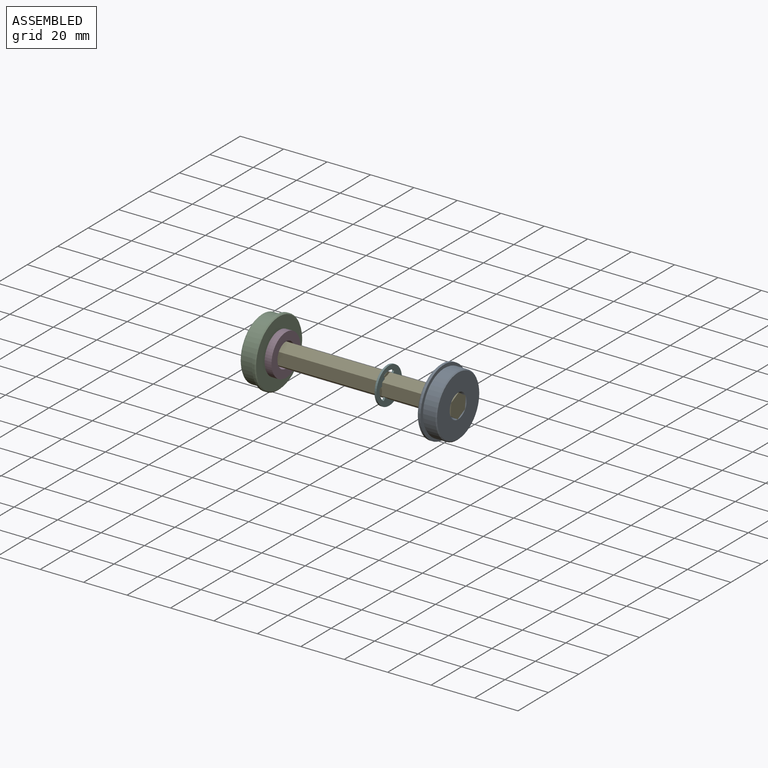
[diagram: assembled view]
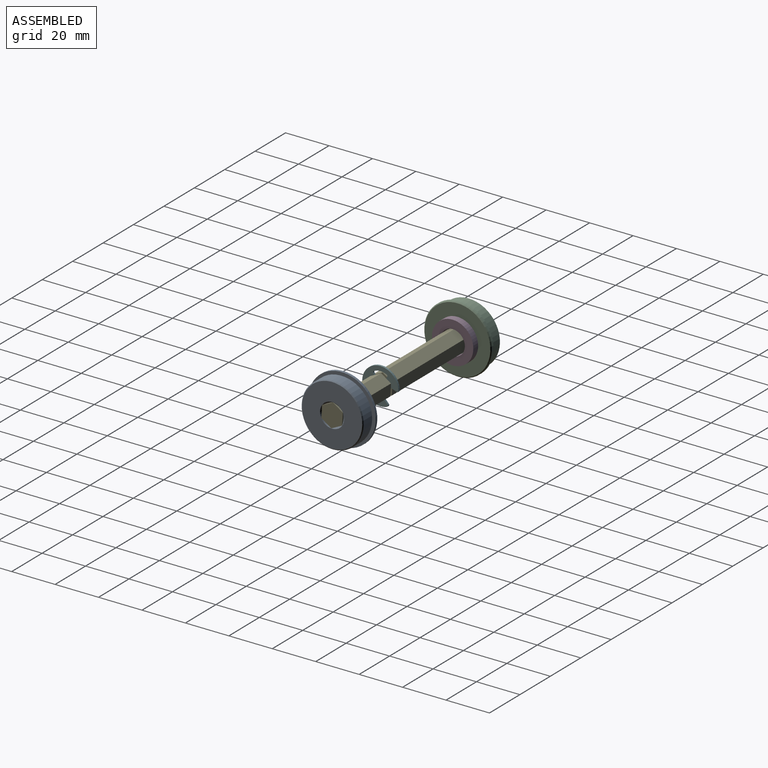
[diagram: assembled view, second angle]
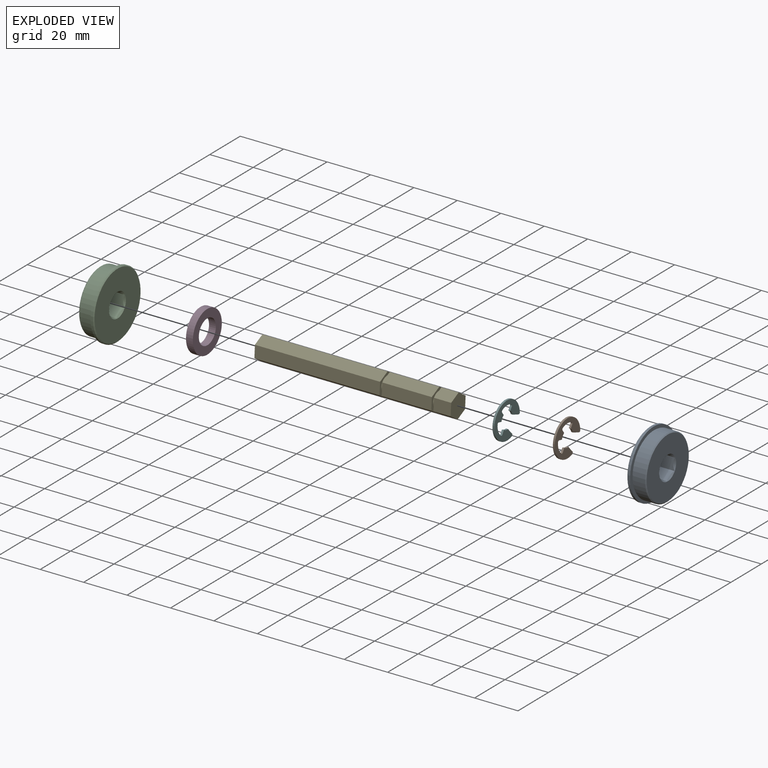
[diagram: exploded view]
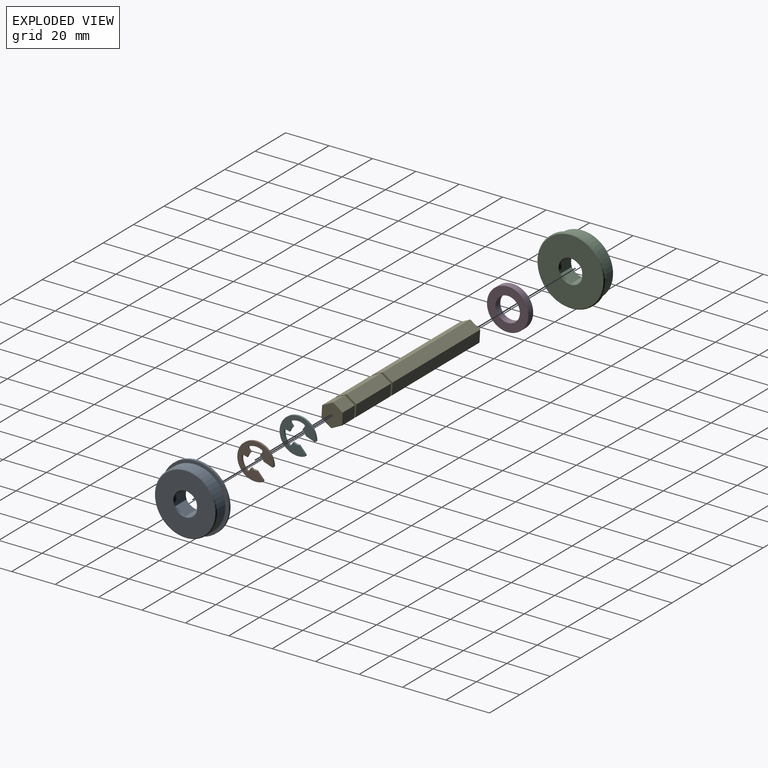
[diagram: exploded view, second angle]
ASSEMBLY  parts=6 mates=5
PART A: 17 faces, bbox 31.1x31.1x7.9 mm
  f0: cone r=5.56mm half-angle=45deg, axis (0,0,1), area 26.4mm2, adj f7,f11,f12,f13,f14,f15,f16
  f1: cone r=13.89mm half-angle=45deg, axis (0,0,1), area 50.1mm2, adj f5,f8
  f2: cone r=4.76mm half-angle=45deg, axis (0,0,-1), area 26.4mm2, adj f8,f11,f12,f13,f14,f15,f16
  f3: cone r=15.56mm half-angle=45deg, axis (0,0,-1), area 54.6mm2, adj f6,f7
  f4: cylinder r=13.97mm len=27.94mm, axis (0,0,-1), area 44.6mm2, adj f9,f10
  f5: cylinder r=14.29mm len=28.58mm, axis (0,0,-1), area 493.3mm2, adj f1,f9
  f6: cylinder r=15.56mm len=31.12mm, axis (0,0,-1), area 109.9mm2, adj f3,f10
  f7: plane 30.32x30.32mm, normal (0,0,1), area 624.6mm2, adj f0,f3
  f8: plane 27.78x27.78mm, normal (0,0,-1), area 508.7mm2, adj f1,f2
  f9: plane 28.58x28.58mm, normal (0,0,1), area 28.2mm2, adj f4,f5
  f10: plane 31.12x31.12mm, normal (0,0,-1), area 147.3mm2, adj f4,f6
  f11: plane 7.8x4.76mm, normal (-0.87,0.5,0), area 37.5mm2, adj f0,f2,f12,f16
  f12: plane 7.8x5.5mm, normal (0,1,0), area 37.6mm2, adj f0,f2,f11,f13
  f13: plane 7.8x4.76mm, normal (0.87,0.5,0), area 37.6mm2, adj f0,f2,f12,f14
  f14: plane 7.8x4.76mm, normal (0.87,-0.5,0), area 37.5mm2, adj f0,f2,f13,f15
  f15: plane 7.8x5.5mm, normal (0,-1,0), area 37.6mm2, adj f0,f2,f14,f16
  f16: plane 7.8x4.76mm, normal (-0.87,-0.5,0), area 37.5mm2, adj f0,f2,f11,f15
PART B: 20 faces, bbox 0.9x16.8x15.4 mm
  f0: cylinder r=0.62mm len=0.96mm, axis (-1,0,0), area 1.1mm2, adj f2,f3,f14,f15
  f1: cylinder r=0.62mm len=0.96mm, axis (-1,0,0), area 1.1mm2, adj f2,f13,f14,f15
  f2: cylinder r=8.38mm len=16.76mm, axis (-1,0,0), area 37.7mm2, adj f0,f1,f14,f15
  f3: plane 3.99x0.99mm, normal (0,-0.97,0.24), area 3.7mm2, adj f0,f4,f14,f15
  f4: cylinder r=3.81mm len=2.52mm, axis (-1,0,0), area 2.4mm2, adj f3,f5,f14,f15
  f5: plane 1.83x0.89mm, normal (0,0,-1), area 1.6mm2, adj f4,f14,f15,f17
  f6: cylinder r=6.29mm len=4.92mm, axis (-1,0,0), area 5.5mm2, adj f14,f15,f17,f19
  f7: plane 1.71x0.89mm, normal (0,0.94,0.35), area 1.6mm2, adj f8,f14,f15,f19
  f8: cylinder r=3.81mm len=2.69mm, axis (-1,0,0), area 2.4mm2, adj f7,f9,f14,f15
  f9: plane 1.71x0.89mm, normal (0,-0.94,0.35), area 1.6mm2, adj f8,f14,f15,f18
  f10: cylinder r=6.29mm len=4.92mm, axis (-1,0,0), area 5.5mm2, adj f14,f15,f16,f18
  f11: plane 1.83x0.89mm, normal (0,0,-1), area 1.6mm2, adj f12,f14,f15,f16
  f12: cylinder r=3.81mm len=2.52mm, axis (-1,0,0), area 2.4mm2, adj f11,f13,f14,f15
  f13: plane 3.99x0.99mm, normal (0,0.97,0.24), area 3.7mm2, adj f1,f12,f14,f15
  f14: plane 16.76x15.36mm, normal (1,0,0), area 110.9mm2, adj f0,f1,f2,f3,f4,f5,f6,f7
  f15: plane 16.76x15.36mm, normal (-1,0,0), area 110.9mm2, adj f0,f1,f2,f3,f4,f5,f6,f7
  f16: cylinder r=0.62mm len=0.89mm, axis (-1,0,0), area 0.9mm2, adj f10,f11,f14,f15
  f17: cylinder r=0.62mm len=0.89mm, axis (-1,0,0), area 0.9mm2, adj f5,f6,f14,f15
  f18: cylinder r=0.62mm len=0.89mm, axis (-1,0,0), area 0.9mm2, adj f9,f10,f14,f15
  f19: cylinder r=0.62mm len=0.89mm, axis (-1,0,0), area 0.9mm2, adj f6,f7,f14,f15
PART C: same geometry as A
PART D: 4 faces, bbox 19.1x3.2x19.1 mm
  f0: cylinder r=5.63mm len=11.25mm, axis (0,-1,0), area 112.2mm2, adj f2,f3
  f1: cylinder r=9.53mm len=19.05mm, axis (0,-1,0), area 190mm2, adj f2,f3
  f2: plane 19.05x19.05mm, normal (0,1,0), area 185.6mm2, adj f0,f1
  f3: plane 19.05x19.05mm, normal (0,-1,0), area 185.6mm2, adj f0,f1
PART E: 26 faces, bbox 11x90.4x9.5 mm
  f0: cylinder r=3.85mm len=7.7mm, axis (0,1,0), area 24mm2, adj f17,f18
  f1: cylinder r=3.85mm len=7.7mm, axis (0,1,0), area 24mm2, adj f15,f16
  f2: plane 22.83x5.49mm, normal (0,0,1), area 125.4mm2, adj f3,f7,f16,f17
  f3: plane 22.83x4.76mm, normal (-0.87,0,0.5), area 125.4mm2, adj f2,f4,f16,f17
  f4: plane 22.83x4.76mm, normal (-0.87,0,-0.5), area 125.4mm2, adj f3,f5,f16,f17
  f5: plane 22.83x5.49mm, normal (0,0,-1), area 125.4mm2, adj f4,f6,f16,f17
  f6: plane 22.83x4.76mm, normal (0.87,0,-0.5), area 125.4mm2, adj f5,f7,f16,f17
  f7: plane 22.83x4.76mm, normal (0.87,0,0.5), area 125.4mm2, adj f2,f6,f16,f17
  f8: plane 57.63x4.76mm, normal (0.87,0,0.5), area 316.5mm2, adj f9,f13,f14,f15
  f9: plane 57.63x4.76mm, normal (0.87,0,-0.5), area 316.5mm2, adj f8,f10,f14,f15
  f10: plane 57.63x5.49mm, normal (0,0,-1), area 316.5mm2, adj f9,f11,f14,f15
  f11: plane 57.63x4.76mm, normal (-0.87,0,-0.5), area 316.5mm2, adj f10,f12,f14,f15
  f12: plane 57.63x4.76mm, normal (-0.87,0,0.5), area 316.5mm2, adj f11,f13,f14,f15
  f13: plane 57.63x5.49mm, normal (0,0,1), area 316.5mm2, adj f8,f12,f14,f15
  f14: plane 10.98x9.51mm, normal (0,-1,0), area 78.4mm2, adj f8,f9,f10,f11,f12,f13
  f15: plane 10.98x9.51mm, normal (0,1,0), area 31.8mm2, adj f1,f8,f9,f10,f11,f12,f13
  f16: plane 10.98x9.51mm, normal (0,-1,0), area 31.8mm2, adj f1,f2,f3,f4,f5,f6,f7
  f17: plane 10.98x9.51mm, normal (0,1,0), area 31.8mm2, adj f0,f2,f3,f4,f5,f6,f7
  f18: plane 10.98x9.51mm, normal (0,-1,0), area 31.8mm2, adj f0,f20,f21,f22,f23,f24,f25
  f19: plane 10.98x9.51mm, normal (0,1,0), area 78.4mm2, adj f20,f21,f22,f23,f24,f25
  f20: plane 7.93x4.76mm, normal (0.87,0,0.5), area 43.5mm2, adj f18,f19,f21,f25
  f21: plane 7.93x4.76mm, normal (0.87,0,-0.5), area 43.5mm2, adj f18,f19,f20,f22
  f22: plane 7.93x5.49mm, normal (0,0,-1), area 43.5mm2, adj f18,f19,f21,f23
  f23: plane 7.93x4.76mm, normal (-0.87,0,-0.5), area 43.5mm2, adj f18,f19,f22,f24
  f24: plane 7.93x4.76mm, normal (-0.87,0,0.5), area 43.5mm2, adj f18,f19,f23,f25
  f25: plane 7.93x5.49mm, normal (0,0,1), area 43.5mm2, adj f18,f19,f20,f24
PART F: same geometry as B
PLACE A rot(axis=(0.43,-0.8,-0.43),103deg) t=(86.41,0,0)mm
PLACE B rot(axis=(0,-0.88,-0.47),180deg) t=(78.04,0,0)mm
PLACE C rot(axis=(0.43,0.8,0.43),103deg) t=(-3.96,0,0)mm
PLACE D rot(axis=(0.43,0.43,-0.8),103deg) t=(3.96,0,0)mm
PLACE E rot(axis=(-0.28,-0.28,-0.92),94.8deg) t=(-3.96,0,0)mm
PLACE F rot(axis=(0,0.88,0.47),180deg) t=(54.22,0,0)mm
MATE fastened E.f0 <-> F.f2  axis (-1,0,0) through (54.66,0,0)mm
MATE fastened B.f2 <-> E.f0  axis (1,0,0) through (78.48,0,0)mm
MATE fastened E.f0 <-> C.f0  axis (-1,0,0) through (-3.96,0,0)mm
MATE fastened E.f0 <-> A.f0  axis (1,0,0) through (86.41,0,0)mm
MATE fastened C.f0 <-> D.f0  axis (1,0,0) through (3.96,0,0)mm
